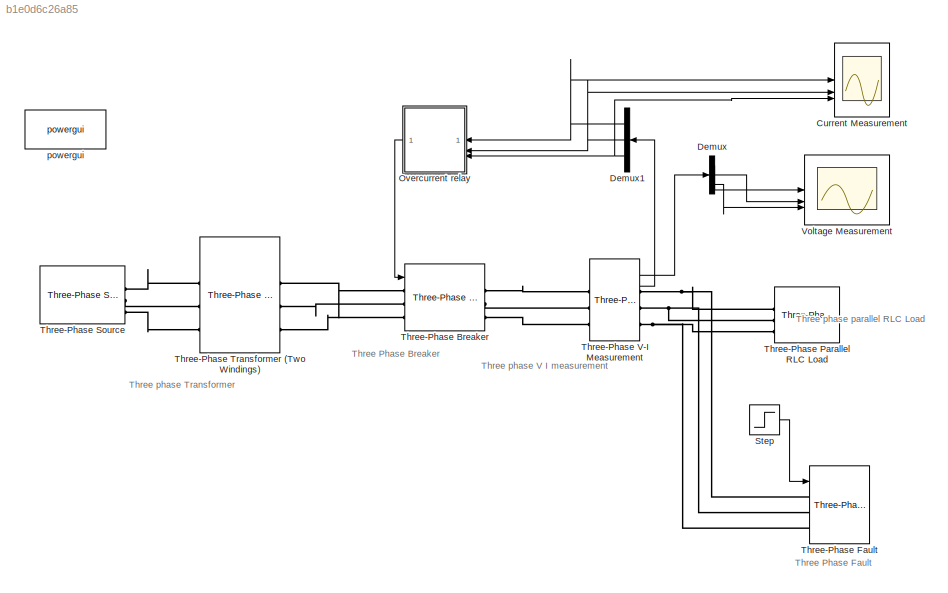
MODEL slx_b1e0d6c26a85
KIND model
CONFIG AbsTol = auto
CONFIG EnableMultiTasking = off
CONFIG FixedStep = auto
CONFIG MaxStep = auto
CONFIG MinStep = auto
CONFIG RelTol = 1e-3
CONFIG SampleTimeConstraint = Unconstrained
CONFIG SolverName = VariableStepAuto
CONFIG StartTime = 0.0
CONFIG StopTime = 0.5
BLOCK [Scope] Current Measurement
  Floating = off
  NumInputPorts = 3
  ScopeSpecificationString = Simulink.scopes.TimeScopeBlockCfg('CurrentConfiguration', extmgr.ConfigurationSet(extmgr.Configuration('Core','General UI',true),extmgr.Configuration('Core','Source UI',true),extmgr.Configuration('Sources','WiredSimulink',true,'DataLoggingVariableName','ScopeData1'),extmgr.Configuration('Visuals','Time Domain',true,'SerializedDisplays',{struct('MinYLimReal','-19391.59009','MaxYLimReal','20219.8982...<+2786ch>
BLOCK [Demux] Demux
  Outputs = 3
BLOCK [Demux] Demux1
  NameLocation = top
  Outputs = 3
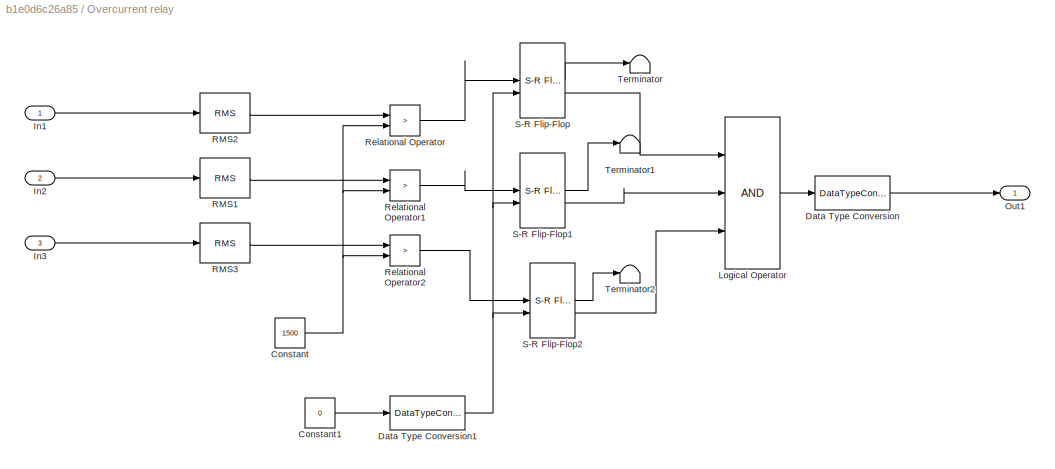
BLOCK [SubSystem] Overcurrent relay
  NameLocation = top
BLOCK [Constant] Overcurrent relay/Constant
  Value = 1500
BLOCK [Constant] Overcurrent relay/Constant1
  Value = 0
BLOCK [DataTypeConversion] Overcurrent relay/Data Type Conversion
  OutDataTypeStr = double
  RndMeth = Floor
  SaturateOnIntegerOverflow = off
BLOCK [DataTypeConversion] Overcurrent relay/Data Type Conversion1
  OutDataTypeStr = boolean
  RndMeth = Floor
  SaturateOnIntegerOverflow = off
BLOCK [Inport] Overcurrent relay/In1
BLOCK [Inport] Overcurrent relay/In2
  Port = 2
BLOCK [Inport] Overcurrent relay/In3
  Port = 3
BLOCK [Logic] Overcurrent relay/Logical Operator
  AllPortsSameDT = off
  Inputs = 3
  OutDataTypeStr = boolean
BLOCK [Outport] Overcurrent relay/Out1
BLOCK [Reference] Overcurrent relay/RMS1  REF=spsRMSLib/RMS
  LibrarySourceBlock = sps_lib/Sensors and Measurements/RMS
  SourceBlock = spsRMSLib/RMS
  SourceType = RMS
BLOCK [Reference] Overcurrent relay/RMS2  REF=spsRMSLib/RMS
  LibrarySourceBlock = sps_lib/Sensors and Measurements/RMS
  SourceBlock = spsRMSLib/RMS
  SourceType = RMS
BLOCK [Reference] Overcurrent relay/RMS3  REF=spsRMSLib/RMS
  LibrarySourceBlock = sps_lib/Sensors and Measurements/RMS
  SourceBlock = spsRMSLib/RMS
  SourceType = RMS
BLOCK [RelationalOperator] Overcurrent relay/Relational Operator
  InputSameDT = off
  Operator = >
  OutDataTypeStr = boolean
BLOCK [RelationalOperator] Overcurrent relay/Relational Operator1
  InputSameDT = off
  Operator = >
  OutDataTypeStr = boolean
BLOCK [RelationalOperator] Overcurrent relay/Relational Operator2
  InputSameDT = off
  Operator = >
  OutDataTypeStr = boolean
BLOCK [Reference] Overcurrent relay/S-R Flip-Flop  REF=simulink_extras/Flip Flops/S-R
Flip-Flop
  SourceBlock = simulink_extras/Flip Flops/S-R\nFlip-Flop
  SourceType = SRFlipFlop
BLOCK [Reference] Overcurrent relay/S-R Flip-Flop1  REF=simulink_extras/Flip Flops/S-R
Flip-Flop
  SourceBlock = simulink_extras/Flip Flops/S-R\nFlip-Flop
  SourceType = SRFlipFlop
BLOCK [Reference] Overcurrent relay/S-R Flip-Flop2  REF=simulink_extras/Flip Flops/S-R
Flip-Flop
  SourceBlock = simulink_extras/Flip Flops/S-R\nFlip-Flop
  SourceType = SRFlipFlop
BLOCK [Terminator] Overcurrent relay/Terminator
BLOCK [Terminator] Overcurrent relay/Terminator1
BLOCK [Terminator] Overcurrent relay/Terminator2
BLOCK [Step] Step
  After = 0.5
  SampleTime = 0
  Time = 0.1
BLOCK [Reference] Three-Phase Breaker  REF=spsThreePhaseBreakerLib/Three-Phase Breaker
  LibrarySourceBlock = sps_lib/Power Grid Elements/Three-Phase Breaker
  SourceBlock = spsThreePhaseBreakerLib/Three-Phase Breaker
  SourceType = Three-Phase Breaker
BLOCK [Reference] Three-Phase Fault  REF=spsThreePhaseFaultLib/Three-Phase Fault
  LibrarySourceBlock = sps_lib/Power Grid Elements/Three-Phase Fault
  SourceBlock = spsThreePhaseFaultLib/Three-Phase Fault
  SourceType = Three-Phase Fault
BLOCK [Reference] Three-Phase Parallel RLC Load  REF=spsThreePhaseParallelRLCLoadLib/Three-Phase
Parallel RLC Load
  AttributesFormatString = \n
  LibrarySourceBlock = sps_lib/Passives/Three-Phase\nParallel RLC Load
  NameLocation = right
  SourceBlock = spsThreePhaseParallelRLCLoadLib/Three-Phase\nParallel RLC Load
  SourceType = Three-Phase Parallel RLC Load
BLOCK [Reference] Three-Phase Source  REF=spsThreePhaseSourceLib/Three-Phase Source
  LibrarySourceBlock = sps_lib/Sources/Three-Phase Source
  SourceBlock = spsThreePhaseSourceLib/Three-Phase Source
  SourceType = Three-Phase Source
BLOCK [Reference] Three-Phase Transformer (Two Windings)  REF=spsThreePhaseTransformerTwoWindingsLib/Three-Phase
Transformer
(Two Windings)
  LibrarySourceBlock = sps_lib/Power Grid Elements/Three-Phase\nTransformer\n(Two Windings)
  SourceBlock = spsThreePhaseTransformerTwoWindingsLib/Three-Phase\nTransformer\n(Two Windings)
  SourceType = Three-Phase Transformer (Two Windings)
BLOCK [Reference] Three-Phase V-I Measurement  REF=spsThreePhaseVIMeasurementLib/Three-Phase
V-I Measurement
  LibrarySourceBlock = sps_lib/Sensors and Measurements/Three-Phase\nV-I Measurement
  SourceBlock = spsThreePhaseVIMeasurementLib/Three-Phase\nV-I Measurement
  SourceType = Three-Phase VI Measurement
BLOCK [Scope] Voltage Measurement
  Floating = off
  NumInputPorts = 3
  ScopeSpecificationString = Simulink.scopes.TimeScopeBlockCfg('CurrentConfiguration', extmgr.ConfigurationSet(extmgr.Configuration('Core','General UI',true),extmgr.Configuration('Core','Source UI',true),extmgr.Configuration('Sources','WiredSimulink',true,'DataLoggingVariableName','ScopeData1'),extmgr.Configuration('Visuals','Time Domain',true,'SerializedDisplays',{struct('MinYLimReal','-301.86426','MaxYLimReal','301.82882','...<+2841ch>
BLOCK [Reference] powergui  REF=spspowerguiLib/powergui
  LibrarySourceBlock = sps_lib/powergui
  Priority = 1
  SourceBlock = spspowerguiLib/powergui
  SourceType = PSB option menu block
ANNOTATION (root): Three Phase Breaker
ANNOTATION (root): Three Phase Fault
ANNOTATION (root): Three phase Transformer
ANNOTATION (root): Three phase V I measurement
ANNOTATION (root): Three phase parallel RLC Load
NET Demux1:1 -> Current Measurement:1, Overcurrent relay:1
NET Demux1:2 -> Current Measurement:2, Overcurrent relay:2
NET Demux1:3 -> Current Measurement:3, Overcurrent relay:3
LINE Demux:1 -> Voltage Measurement:1
LINE Demux:2 -> Voltage Measurement:2
LINE Demux:3 -> Voltage Measurement:3
LINE Overcurrent relay/Constant1:1 -> Overcurrent relay/Data Type Conversion1:1
NET Overcurrent relay/Constant:1 -> Overcurrent relay/Relational Operator1:2, Overcurrent relay/Relational Operator2:2, Overcurrent relay/Relational Operator:2
NET Overcurrent relay/Data Type Conversion1:1 -> Overcurrent relay/S-R Flip-Flop1:2, Overcurrent relay/S-R Flip-Flop2:2, Overcurrent relay/S-R Flip-Flop:2
LINE Overcurrent relay/Data Type Conversion:1 -> Overcurrent relay/Out1:1
LINE Overcurrent relay/In1:1 -> Overcurrent relay/RMS2:1
LINE Overcurrent relay/In2:1 -> Overcurrent relay/RMS1:1
LINE Overcurrent relay/In3:1 -> Overcurrent relay/RMS3:1
LINE Overcurrent relay/Logical Operator:1 -> Overcurrent relay/Data Type Conversion:1
LINE Overcurrent relay/RMS1:1 -> Overcurrent relay/Relational Operator1:1
LINE Overcurrent relay/RMS2:1 -> Overcurrent relay/Relational Operator:1
LINE Overcurrent relay/RMS3:1 -> Overcurrent relay/Relational Operator2:1
LINE Overcurrent relay/Relational Operator1:1 -> Overcurrent relay/S-R Flip-Flop1:1
LINE Overcurrent relay/Relational Operator2:1 -> Overcurrent relay/S-R Flip-Flop2:1
LINE Overcurrent relay/Relational Operator:1 -> Overcurrent relay/S-R Flip-Flop:1
LINE Overcurrent relay/S-R Flip-Flop1:1 -> Overcurrent relay/Terminator1:1
LINE Overcurrent relay/S-R Flip-Flop1:2 -> Overcurrent relay/Logical Operator:2
LINE Overcurrent relay/S-R Flip-Flop2:1 -> Overcurrent relay/Terminator2:1
LINE Overcurrent relay/S-R Flip-Flop2:2 -> Overcurrent relay/Logical Operator:3
LINE Overcurrent relay/S-R Flip-Flop:1 -> Overcurrent relay/Terminator:1
LINE Overcurrent relay/S-R Flip-Flop:2 -> Overcurrent relay/Logical Operator:1
LINE Overcurrent relay:1 -> Three-Phase Breaker:1
LINE Step:1 -> Three-Phase Fault:1
LINE Three-Phase V-I Measurement:1 -> Demux:1
LINE Three-Phase V-I Measurement:2 -> Demux1:1
PLINE Three-Phase Breaker:LConn1 -- Three-Phase Transformer (Two Windings):RConn1
PLINE Three-Phase Breaker:LConn2 -- Three-Phase Transformer (Two Windings):RConn2
PLINE Three-Phase Breaker:LConn3 -- Three-Phase Transformer (Two Windings):RConn3
PLINE Three-Phase Breaker:RConn1 -- Three-Phase V-I Measurement:LConn1
PLINE Three-Phase Breaker:RConn2 -- Three-Phase V-I Measurement:LConn2
PLINE Three-Phase Breaker:RConn3 -- Three-Phase V-I Measurement:LConn3
PNET net1: Three-Phase Fault:LConn1 -- Three-Phase Parallel RLC Load:LConn1 -- Three-Phase V-I Measurement:RConn1
PNET net2: Three-Phase Fault:LConn2 -- Three-Phase Parallel RLC Load:LConn2 -- Three-Phase V-I Measurement:RConn2
PNET net3: Three-Phase Fault:LConn3 -- Three-Phase Parallel RLC Load:LConn3 -- Three-Phase V-I Measurement:RConn3
PLINE Three-Phase Source:RConn1 -- Three-Phase Transformer (Two Windings):LConn1
PLINE Three-Phase Source:RConn2 -- Three-Phase Transformer (Two Windings):LConn2
PLINE Three-Phase Source:RConn3 -- Three-Phase Transformer (Two Windings):LConn3
note: NET lines group one-source signal fan-out (src -> all destinations, sorted); 1:1 wires keep LINE; PNET lines group multi-terminal physical nets as a canonical sorted terminal list (undirected conserving connections); 2-terminal nets keep the pairwise PLINE form
